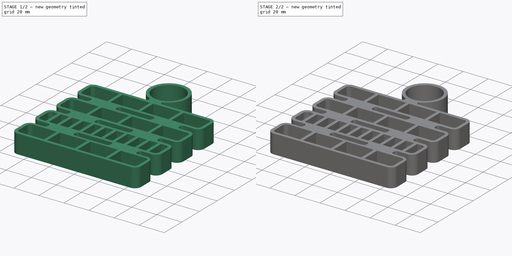
[diagram: build sequence overview — one tinted view per stage of 2, left to right]
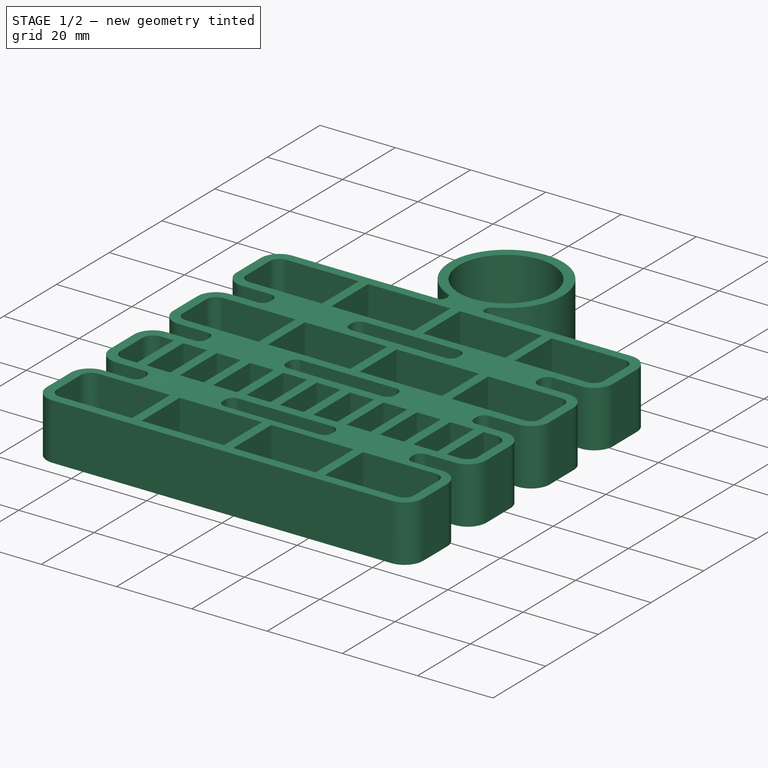
[diagram: stage 1 of 2 — iso view after this stage's code; geometry added in this stage tinted green]
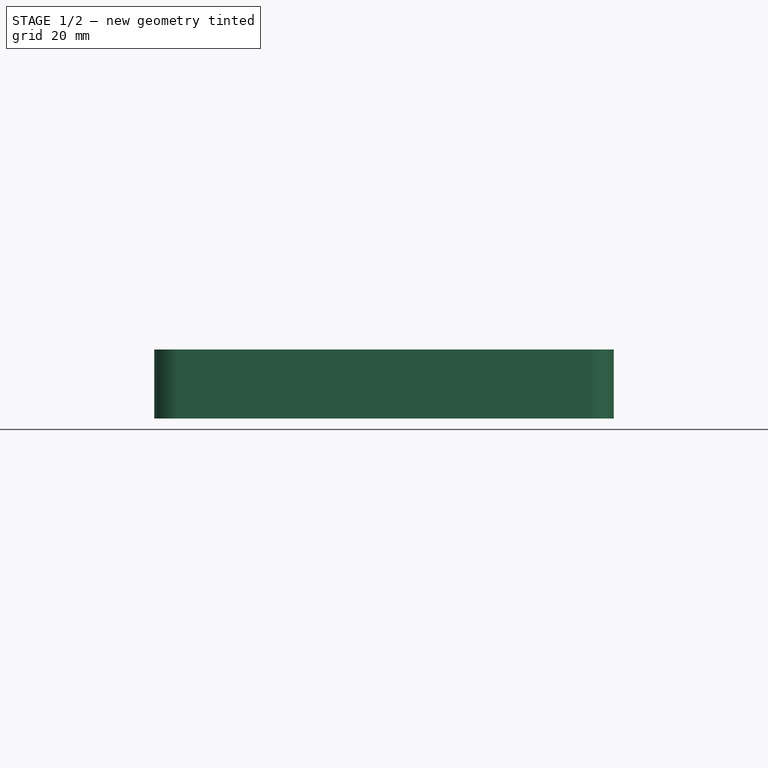
[diagram: stage 1 of 2 — front view after this stage's code; geometry added in this stage tinted green]
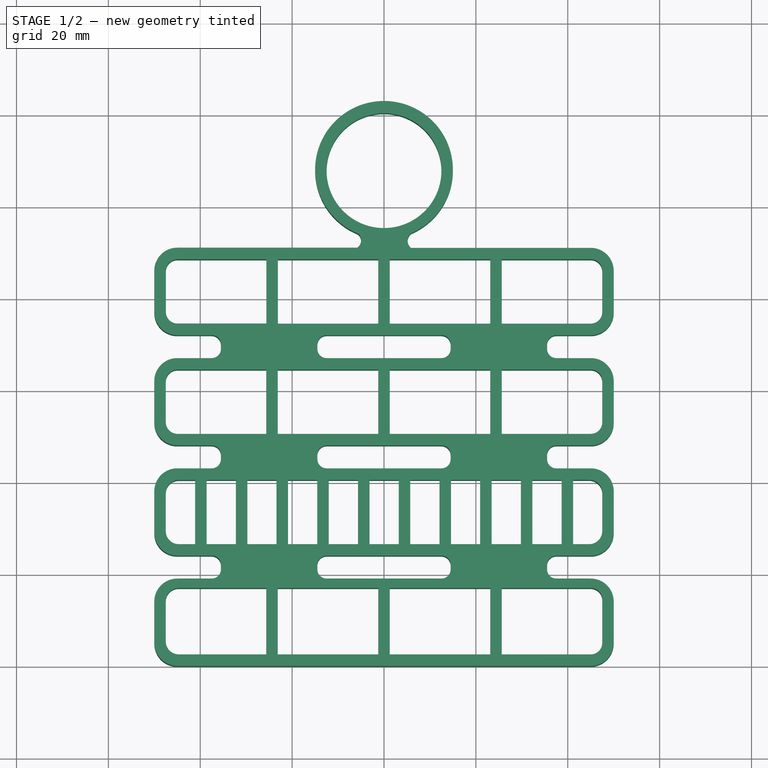
[diagram: stage 1 of 2 — top view after this stage's code; geometry added in this stage tinted green]
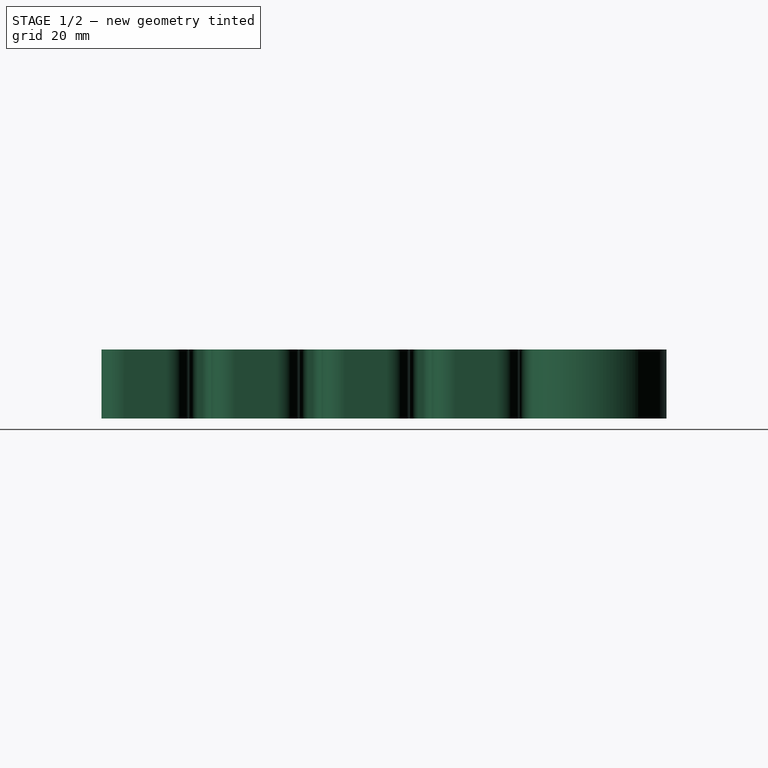
[diagram: stage 1 of 2 — right view after this stage's code; geometry added in this stage tinted green]
FCSTD DOCUMENT  (FreeCAD 1.0R39109 (Git))
Label: TD-FBUH01
License: All rights reserved
LicenseURL: http://en.wikipedia.org/wiki/All_rights_reserved
objects: Sketcher::SketchObject×3, PartDesign::Pocket×2, PartDesign::Pad×1, PartDesign::Body×1
note: 16 computed .brp shape members not serialized (recipe doc carries the construction recipe); baked Part::Feature solids carry a one-line shape summary decoded from their .brp

FEATURE [Sketcher::SketchObject] Sketch
  ArcFitTolerance = 1e-06
  AttachmentSupport = -> [XY_Plane]
  FullyConstrained = false
  MakeInternals = false
  MapMode = 5
  sketch-geometry (119):
    g0: LineSegment StartX=-50 StartY=14 StartZ=0 EndX=-50 EndY=5 EndZ=0
    g1: LineSegment StartX=-45 StartY=0 StartZ=0 EndX=45 EndY=0 EndZ=0
    g2: LineSegment StartX=50 StartY=5 StartZ=0 EndX=50 EndY=14 EndZ=0
    g3: LineSegment StartX=45 StartY=19 StartZ=0 EndX=37.5 EndY=19 EndZ=0
    g4: LineSegment StartX=-50 StartY=38 StartZ=0 EndX=-50 EndY=29 EndZ=0
    g5: LineSegment StartX=-45 StartY=24 StartZ=0 EndX=-37.5 EndY=24 EndZ=0
    g6: LineSegment StartX=50 StartY=29 StartZ=0 EndX=50 EndY=38 EndZ=0
    g7: LineSegment StartX=45 StartY=43 StartZ=0 EndX=37.5 EndY=43 EndZ=0
    g8: LineSegment StartX=-50 StartY=62 StartZ=0 EndX=-50 EndY=53 EndZ=0
    g9: LineSegment StartX=-45 StartY=48 StartZ=0 EndX=-37.5 EndY=48 EndZ=0
    g10: LineSegment StartX=50 StartY=53 StartZ=0 EndX=50 EndY=62 EndZ=0
    g11: LineSegment StartX=45 StartY=67 StartZ=0 EndX=37.5 EndY=67 EndZ=0
    g12: LineSegment StartX=-50 StartY=86.032 StartZ=0 EndX=-50 EndY=77 EndZ=0
    g13: LineSegment StartX=-45 StartY=72 StartZ=0 EndX=-37.5 EndY=72 EndZ=0
    g14: LineSegment StartX=50 StartY=77 StartZ=0 EndX=50 EndY=86 EndZ=0
    g15: LineSegment StartX=45 StartY=91 StartZ=0 EndX=5.86926 EndY=91 EndZ=0
    g16: LineSegment [constr] StartX=50 StartY=19 StartZ=0 EndX=50 EndY=24 EndZ=0
    g17: LineSegment [constr] StartX=50 StartY=43 StartZ=0 EndX=50 EndY=48 EndZ=0
    g18: LineSegment [constr] StartX=50 StartY=67 StartZ=0 EndX=50 EndY=72 EndZ=0
    g19: LineSegment StartX=-35.5 StartY=21 StartZ=0 EndX=-35.5 EndY=22 EndZ=0
    g20: LineSegment StartX=-14.5 StartY=21 StartZ=0 EndX=-14.5 EndY=22 EndZ=0
    g21: LineSegment StartX=14.5 StartY=21 StartZ=0 EndX=14.5 EndY=22 EndZ=0
    g22: LineSegment StartX=35.5 StartY=21 StartZ=0 EndX=35.5 EndY=22 EndZ=0
    g23: LineSegment StartX=-12.5 StartY=24 StartZ=0 EndX=12.5 EndY=24 EndZ=0
    g24: LineSegment StartX=-37.5 StartY=19 StartZ=0 EndX=-45 EndY=19 EndZ=0
    g25: LineSegment StartX=37.5 StartY=24 StartZ=0 EndX=45 EndY=24 EndZ=0
    g26: LineSegment StartX=12.5 StartY=19 StartZ=0 EndX=-12.5 EndY=19 EndZ=0
    g27: LineSegment [constr] StartX=-50 StartY=0 StartZ=0 EndX=-50 EndY=91.032 EndZ=0
    g28: LineSegment StartX=-35.5 StartY=45 StartZ=0 EndX=-35.5 EndY=46 EndZ=0
    g29: LineSegment StartX=-14.5 StartY=45 StartZ=0 EndX=-14.5 EndY=46 EndZ=0
    g30: LineSegment StartX=14.5 StartY=45 StartZ=0 EndX=14.5 EndY=46 EndZ=0
    g31: LineSegment StartX=35.5 StartY=45 StartZ=0 EndX=35.5 EndY=46 EndZ=0
    g32: LineSegment StartX=-35.5 StartY=69 StartZ=0 EndX=-35.5 EndY=70 EndZ=0
    g33: LineSegment StartX=-14.5 StartY=69 StartZ=0 EndX=-14.5 EndY=70 EndZ=0
    g34: LineSegment StartX=14.5 StartY=69 StartZ=0 EndX=14.5 EndY=70 EndZ=0
    g35: LineSegment StartX=35.5 StartY=69 StartZ=0 EndX=35.5 EndY=70 EndZ=0
    g36: LineSegment StartX=-12.5 StartY=72 StartZ=0 EndX=12.5 EndY=72 EndZ=0
    g37: LineSegment StartX=-37.5 StartY=67 StartZ=0 EndX=-45 EndY=67 EndZ=0
    g38: LineSegment StartX=37.5 StartY=72 StartZ=0 EndX=45 EndY=72 EndZ=0
    g39: LineSegment StartX=12.5 StartY=67 StartZ=0 EndX=-12.5 EndY=67 EndZ=0
    g40: LineSegment StartX=37.5 StartY=48 StartZ=0 EndX=45 EndY=48 EndZ=0
    g41: LineSegment StartX=12.5 StartY=43 StartZ=0 EndX=-12.5 EndY=43 EndZ=0
    g42: LineSegment StartX=-37.5 StartY=43 StartZ=0 EndX=-45 EndY=43 EndZ=0
    g43: LineSegment StartX=-12.5 StartY=48 StartZ=0 EndX=12.5 EndY=48 EndZ=0
    g44: ArcOfCircle CenterX=0 CenterY=107.972 CenterZ=0 NormalX=0 NormalY=0 NormalZ=1 AngleXU=0 Radius=15 StartAngle=5.11282 EndAngle=10.6116
    g45: LineSegment StartX=-5.82281 StartY=91.032 StartZ=0 EndX=-45 EndY=91.032 EndZ=0
    g46: ArcOfCircle CenterX=45 CenterY=5 CenterZ=0 NormalX=0 NormalY=0 NormalZ=1 AngleXU=0 Radius=5 StartAngle=4.71239 EndAngle=6.28319
    g47: GeomPoint [constr] X=50 Y=0 Z=0
    g48: ArcOfCircle CenterX=45 CenterY=14 CenterZ=0 NormalX=0 NormalY=0 NormalZ=1 AngleXU=0 Radius=5 StartAngle=0 EndAngle=1.5708
    g49: GeomPoint [constr] X=50 Y=19 Z=0
    g50: ArcOfCircle CenterX=45 CenterY=29 CenterZ=0 NormalX=0 NormalY=0 NormalZ=1 AngleXU=0 Radius=5 StartAngle=4.71239 EndAngle=6.28319
    g51: GeomPoint [constr] X=50 Y=24 Z=0
    g52: ArcOfCircle CenterX=45 CenterY=38 CenterZ=0 NormalX=0 NormalY=0 NormalZ=1 AngleXU=0 Radius=5 StartAngle=6e-16 EndAngle=1.5708
    g53: GeomPoint [constr] X=50 Y=43 Z=0
    g54: ArcOfCircle CenterX=45 CenterY=53 CenterZ=0 NormalX=0 NormalY=0 NormalZ=1 AngleXU=0 Radius=5 StartAngle=4.71239 EndAngle=6.28319
    g55: GeomPoint [constr] X=50 Y=48 Z=0
    g56: ArcOfCircle CenterX=45 CenterY=62 CenterZ=0 NormalX=0 NormalY=0 NormalZ=1 AngleXU=0 Radius=5 StartAngle=5e-16 EndAngle=1.5708
    g57: GeomPoint [constr] X=50 Y=67 Z=0
    g58: ArcOfCircle CenterX=45 CenterY=77 CenterZ=0 NormalX=0 NormalY=0 NormalZ=1 AngleXU=0 Radius=5 StartAngle=4.71239 EndAngle=6.28319
    g59: GeomPoint [constr] X=50 Y=72 Z=0
    g60: ArcOfCircle CenterX=45 CenterY=86 CenterZ=0 NormalX=0 NormalY=0 NormalZ=1 AngleXU=0 Radius=5 StartAngle=0 EndAngle=1.5708
    g61: GeomPoint [constr] X=50 Y=91 Z=0
    g62: LineSegment [constr] StartX=45 StartY=0 StartZ=0 EndX=45 EndY=91 EndZ=0
    g63: ArcOfCircle CenterX=-45 CenterY=5 CenterZ=0 NormalX=0 NormalY=0 NormalZ=1 AngleXU=0 Radius=5 StartAngle=3.14159 EndAngle=4.71239
    g64: GeomPoint [constr] X=-50 Y=0 Z=0
    g65: ArcOfCircle CenterX=-45 CenterY=14 CenterZ=0 NormalX=0 NormalY=0 NormalZ=1 AngleXU=0 Radius=5 StartAngle=1.5708 EndAngle=3.14159
    g66: GeomPoint [constr] X=-50 Y=19 Z=0
    g67: ArcOfCircle CenterX=-45 CenterY=29 CenterZ=0 NormalX=0 NormalY=0 NormalZ=1 AngleXU=0 Radius=5 StartAngle=3.14159 EndAngle=4.71239
    g68: GeomPoint [constr] X=-50 Y=24 Z=0
    g69: ArcOfCircle CenterX=-45 CenterY=38 CenterZ=0 NormalX=0 NormalY=0 NormalZ=1 AngleXU=0 Radius=5 StartAngle=1.5708 EndAngle=3.14159
    g70: GeomPoint [constr] X=-50 Y=43 Z=0
    g71: ArcOfCircle CenterX=-45 CenterY=53 CenterZ=0 NormalX=0 NormalY=0 NormalZ=1 AngleXU=0 Radius=5 StartAngle=3.14159 EndAngle=4.71239
    g72: GeomPoint [constr] X=-50 Y=48 Z=0
    g73: ArcOfCircle CenterX=-45 CenterY=62 CenterZ=0 NormalX=0 NormalY=0 NormalZ=1 AngleXU=0 Radius=5 StartAngle=1.5708 EndAngle=3.14159
    g74: GeomPoint [constr] X=-50 Y=67 Z=0
    g75: LineSegment [constr] StartX=-45 StartY=0 StartZ=0 EndX=-45 EndY=91.032 EndZ=0
    g76: ArcOfCircle CenterX=-45 CenterY=86.032 CenterZ=0 NormalX=0 NormalY=0 NormalZ=1 AngleXU=0 Radius=5 StartAngle=1.5708 EndAngle=3.14159
    g77: GeomPoint [constr] X=-50 Y=91.032 Z=0
    g78: ArcOfCircle CenterX=-45 CenterY=77 CenterZ=0 NormalX=0 NormalY=0 NormalZ=1 AngleXU=0 Radius=5 StartAngle=3.14159 EndAngle=4.71239
    g79: GeomPoint [constr] X=-50 Y=72 Z=0
    g80: LineSegment [constr] StartX=-45 StartY=5 StartZ=0 EndX=-50 EndY=5 EndZ=0
    g81: LineSegment [constr] StartX=45 StartY=5 StartZ=0 EndX=50 EndY=5 EndZ=0
    g82: ArcOfCircle CenterX=-37.5 CenterY=22 CenterZ=0 NormalX=0 NormalY=0 NormalZ=1 AngleXU=0 Radius=2 StartAngle=-9e-16 EndAngle=1.5708
    g83: ArcOfCircle CenterX=-37.5 CenterY=21 CenterZ=0 NormalX=0 NormalY=0 NormalZ=1 AngleXU=0 Radius=2 StartAngle=4.71239 EndAngle=6.28319
    g84: ArcOfCircle CenterX=-12.5 CenterY=22 CenterZ=0 NormalX=0 NormalY=0 NormalZ=1 AngleXU=0 Radius=2 StartAngle=1.5708 EndAngle=3.14159
    g85: ArcOfCircle CenterX=-12.5 CenterY=21 CenterZ=0 NormalX=0 NormalY=0 NormalZ=1 AngleXU=0 Radius=2 StartAngle=3.14159 EndAngle=4.71239
    g86: ArcOfCircle CenterX=12.5 CenterY=22 CenterZ=0 NormalX=0 NormalY=0 NormalZ=1 AngleXU=0 Radius=2 StartAngle=9e-16 EndAngle=1.5708
    g87: ArcOfCircle CenterX=12.5 CenterY=21 CenterZ=0 NormalX=0 NormalY=0 NormalZ=1 AngleXU=0 Radius=2 StartAngle=4.71239 EndAngle=6.28319
    g88: ArcOfCircle CenterX=37.5 CenterY=21 CenterZ=0 NormalX=0 NormalY=0 NormalZ=1 AngleXU=0 Radius=2 StartAngle=3.14159 EndAngle=4.71239
    g89: ArcOfCircle CenterX=37.5 CenterY=22 CenterZ=0 NormalX=0 NormalY=0 NormalZ=1 AngleXU=0 Radius=2 StartAngle=1.5708 EndAngle=3.14159
    g90: LineSegment [constr] StartX=12.5 StartY=19 StartZ=0 EndX=37.5 EndY=19 EndZ=0
    g91: LineSegment [constr] StartX=-37.5 StartY=19 StartZ=0 EndX=-12.5 EndY=19 EndZ=0
    g92: LineSegment [constr] StartX=-37.5 StartY=24 StartZ=0 EndX=-12.5 EndY=24 EndZ=0
    g93: LineSegment [constr] StartX=12.5 StartY=24 StartZ=0 EndX=37.5 EndY=24 EndZ=0
    g94: ArcOfCircle CenterX=-37.5 CenterY=45 CenterZ=0 NormalX=0 NormalY=0 NormalZ=1 AngleXU=0 Radius=2 StartAngle=4.71239 EndAngle=6.28319
    g95: ArcOfCircle CenterX=-37.5 CenterY=46 CenterZ=0 NormalX=0 NormalY=0 NormalZ=1 AngleXU=0 Radius=2 StartAngle=0 EndAngle=1.5708
    g96: ArcOfCircle CenterX=-12.5 CenterY=46 CenterZ=0 NormalX=0 NormalY=0 NormalZ=1 AngleXU=0 Radius=2 StartAngle=1.5708 EndAngle=3.14159
    g97: ArcOfCircle CenterX=-12.5 CenterY=45 CenterZ=0 NormalX=0 NormalY=0 NormalZ=1 AngleXU=0 Radius=2 StartAngle=3.14159 EndAngle=4.71239
    g98: ArcOfCircle CenterX=12.5 CenterY=45 CenterZ=0 NormalX=0 NormalY=0 NormalZ=1 AngleXU=0 Radius=2 StartAngle=4.71239 EndAngle=6.28319
    g99: ArcOfCircle CenterX=12.5 CenterY=46 CenterZ=0 NormalX=0 NormalY=0 NormalZ=1 AngleXU=0 Radius=2 StartAngle=1.3e-15 EndAngle=1.5708
    g100: ArcOfCircle CenterX=37.5 CenterY=46 CenterZ=0 NormalX=0 NormalY=0 NormalZ=1 AngleXU=0 Radius=2 StartAngle=1.5708 EndAngle=3.14159
    g101: ArcOfCircle CenterX=37.5 CenterY=45 CenterZ=0 NormalX=0 NormalY=0 NormalZ=1 AngleXU=0 Radius=2 StartAngle=3.14159 EndAngle=4.71239
    g102: LineSegment [constr] StartX=12.5 StartY=43 StartZ=0 EndX=37.5 EndY=43 EndZ=0
    g103: LineSegment [constr] StartX=12.5 StartY=48 StartZ=0 EndX=37.5 EndY=48 EndZ=0
    g104: LineSegment [constr] StartX=-37.5 StartY=43 StartZ=0 EndX=-12.5 EndY=43 EndZ=0
    g105: ArcOfCircle CenterX=-37.5 CenterY=69 CenterZ=0 NormalX=0 NormalY=0 NormalZ=1 AngleXU=0 Radius=2 StartAngle=4.71239 EndAngle=6.28319
    g106: ArcOfCircle CenterX=-37.5 CenterY=70 CenterZ=0 NormalX=0 NormalY=0 NormalZ=1 AngleXU=0 Radius=2 StartAngle=-1.8e-15 EndAngle=1.5708
    g107: ArcOfCircle CenterX=-12.5 CenterY=70 CenterZ=0 NormalX=0 NormalY=0 NormalZ=1 AngleXU=0 Radius=2 StartAngle=1.5708 EndAngle=3.14159
    g108: ArcOfCircle CenterX=-12.5 CenterY=69 CenterZ=0 NormalX=0 NormalY=0 NormalZ=1 AngleXU=0 Radius=2 StartAngle=3.14159 EndAngle=4.71239
    g109: ArcOfCircle CenterX=12.5 CenterY=69 CenterZ=0 NormalX=0 NormalY=0 NormalZ=1 AngleXU=0 Radius=2 StartAngle=4.71239 EndAngle=6.28319
    g110: ArcOfCircle CenterX=12.5 CenterY=70 CenterZ=0 NormalX=0 NormalY=0 NormalZ=1 AngleXU=0 Radius=2 StartAngle=3.3e-15 EndAngle=1.5708
    g111: ArcOfCircle CenterX=37.5 CenterY=70 CenterZ=0 NormalX=0 NormalY=0 NormalZ=1 AngleXU=0 Radius=2 StartAngle=1.5708 EndAngle=3.14159
    g112: ArcOfCircle CenterX=37.5 CenterY=69 CenterZ=0 NormalX=0 NormalY=0 NormalZ=1 AngleXU=0 Radius=2 StartAngle=3.14159 EndAngle=4.71239
    g113: LineSegment [constr] StartX=-37.5 StartY=67 StartZ=0 EndX=-12.5 EndY=67 EndZ=0
    g114: LineSegment [constr] StartX=-37.5 StartY=72 StartZ=0 EndX=-12.5 EndY=72 EndZ=0
    g115: LineSegment [constr] StartX=12.5 StartY=72 StartZ=0 EndX=37.5 EndY=72 EndZ=0
    g116: LineSegment [constr] StartX=12.5 StartY=67 StartZ=0 EndX=37.5 EndY=67 EndZ=0
    g117: ArcOfCircle CenterX=7.24133 CenterY=92.5892 CenterZ=0 NormalX=0 NormalY=0 NormalZ=1 AngleXU=0 Radius=2.09954 StartAngle=2.29693 EndAngle=4.00017
    g118: ArcOfCircle CenterX=-6.9419 CenterY=92.6304 CenterZ=0 NormalX=0 NormalY=0 NormalZ=1 AngleXU=0 Radius=1.95124 StartAngle=5.3232 EndAngle=7.10896
  constraints (277):
    c: Vertical(g0)
    c: Vertical(g2)
    c: Horizontal(g3)
    c: PointOnObject(g47,g-1)
    c: Symmetric(g47,g64,g-2)
    c: Vertical(g4)
    c: Vertical(g6)
    c: Horizontal(g7)
    c: Vertical(g8)
    c: Vertical(g10)
    c: Horizontal(g11)
    c: Vertical(g12)
    c: Vertical(g14)
    c: Horizontal(g15)
    c: Symmetric(g68,g51,g-2)
    c: Symmetric(g72,g55,g-2)
    c: Symmetric(g79,g59,g-2)
    c: Coincident(g16,g49)
    c: Coincident(g16,g51)
    c: Coincident(g17,g53)
    c: Coincident(g17,g55)
    c: Coincident(g18,g57)
    c: Coincident(g18,g59)
    c: Equal(g16,g17)
    c: Equal(g17,g18)
    c: DistanceY(g16,g16) = 5
    c: DistanceY(g47,g49) = 19
    c: DistanceX(g64,g47) = 100
    c: Vertical(g19)
    c: Vertical(g20)
    c: Vertical(g21)
    c: Vertical(g22)
    c: Horizontal(g23)
    c: Horizontal(g5)
    c: Horizontal(g24)
    c: Coincident(g27,g64)
    c: Coincident(g27,g77)
    c: Vertical(g27)
    c: PointOnObject(g70,g27)
    c: Vertical(g28)
    c: Vertical(g29)
    c: Vertical(g30)
    c: Vertical(g31)
    c: Vertical(g32)
    c: Vertical(g33)
    c: Vertical(g34)
    c: Vertical(g35)
    c: Horizontal(g13)
    c: Horizontal(g36)
    c: Horizontal(g39)
    c: Horizontal(g37)
    c: Horizontal(g9)
    c: Horizontal(g42)
    c: Horizontal(g41)
    c: Horizontal(g43)
    c: Horizontal(g40)
    c: Horizontal(g38)
    c: PointOnObject(g74,g27)
    c: PointOnObject(g44,g-2)
    c: Radius(g44) = 15
    c: Horizontal(g45)
    c: PointOnObject(g47,g1)
    c: PointOnObject(g47,g2)
    c: Tangent(g1,g46) = -1.5708
    c: Tangent(g2,g46) = -1.5708
    c: PointOnObject(g49,g2)
    c: PointOnObject(g49,g3)
    c: Tangent(g2,g48) = -1.5708
    c: Tangent(g3,g48) = -1.5708
    c: PointOnObject(g51,g25)
    c: PointOnObject(g51,g6)
    c: Tangent(g25,g50) = -1.5708
    c: Tangent(g6,g50) = -1.5708
    c: PointOnObject(g53,g6)
    c: PointOnObject(g53,g7)
    c: Tangent(g6,g52) = -1.5708
    c: Tangent(g7,g52) = -1.5708
    c: PointOnObject(g55,g40)
    c: PointOnObject(g55,g10)
    c: Tangent(g40,g54) = -1.5708
    c: Tangent(g10,g54) = -1.5708
    c: PointOnObject(g57,g10)
    c: PointOnObject(g57,g11)
    c: Tangent(g10,g56) = -1.5708
    c: Tangent(g11,g56) = -1.5708
    c: PointOnObject(g59,g38)
    c: PointOnObject(g59,g14)
    c: Tangent(g38,g58) = -1.5708
    c: Tangent(g14,g58) = -1.5708
    c: PointOnObject(g61,g14)
    c: PointOnObject(g61,g15)
    c: Tangent(g14,g60) = -1.5708
    c: Tangent(g15,g60) = -1.5708
    c: PointOnObject(g62,g1)
    c: PointOnObject(g62,g15)
    c: Vertical(g62)
    c: PointOnObject(g60,g62)
    c: PointOnObject(g58,g62)
    c: PointOnObject(g56,g62)
    c: PointOnObject(g54,g62)
    c: PointOnObject(g52,g62)
    c: PointOnObject(g50,g62)
    c: PointOnObject(g48,g62)
    c: PointOnObject(g46,g62)
    c: DistanceX(g62,g2) = 5
    c: Equal(g2,g6)
    c: Equal(g6,g10)
    c: Equal(g10,g14)
    c: PointOnObject(g64,g1)
    c: PointOnObject(g64,g0)
    c: Tangent(g1,g63) = -1.5708
    c: Tangent(g0,g63) = -1.5708
    c: PointOnObject(g66,g0)
    c: PointOnObject(g66,g24)
    c: Tangent(g0,g65) = -1.5708
    c: Tangent(g24,g65) = -1.5708
    c: PointOnObject(g68,g5)
    c: PointOnObject(g68,g4)
    c: Tangent(g5,g67) = -1.5708
    c: Tangent(g4,g67) = -1.5708
    c: PointOnObject(g70,g4)
    c: PointOnObject(g70,g42)
    c: Tangent(g4,g69) = -1.5708
    c: Tangent(g42,g69) = -1.5708
    c: PointOnObject(g72,g9)
    c: PointOnObject(g72,g8)
    c: Tangent(g9,g71) = -1.5708
    c: Tangent(g8,g71) = -1.5708
    c: PointOnObject(g74,g8)
    c: PointOnObject(g74,g37)
    c: Tangent(g8,g73) = -1.5708
    c: Tangent(g37,g73) = -1.5708
    c: PointOnObject(g75,g1)
    c: PointOnObject(g75,g45)
    c: Vertical(g75)
    c: PointOnObject(g77,g12)
    c: PointOnObject(g77,g45)
    c: Tangent(g12,g76) = -1.5708
    c: Tangent(g45,g76) = -1.5708
    c: PointOnObject(g79,g13)
    c: PointOnObject(g79,g12)
    c: Tangent(g13,g78) = -1.5708
    c: Tangent(g12,g78) = -1.5708
    c: PointOnObject(g76,g75)
    c: PointOnObject(g78,g75)
    c: PointOnObject(g71,g75)
    c: PointOnObject(g69,g75)
    c: PointOnObject(g67,g75)
    c: PointOnObject(g65,g75)
    c: PointOnObject(g63,g75)
    c: Coincident(g80,g63)
    c: Coincident(g80,g0)
    c: Coincident(g81,g46)
    c: Equal(g80,g81)
    c: Coincident(g81,g2)
    c: PointOnObject(g73,g75)
    c: Tangent(g5,g82) = 1.5708
    c: Tangent(g19,g82) = -1.5708
    c: Tangent(g24,g83) = 1.5708
    c: Tangent(g19,g83) = -1.5708
    c: Tangent(g23,g84) = 1.5708
    c: Tangent(g20,g84) = 1.5708
    c: Tangent(g26,g85) = 1.5708
    c: Tangent(g20,g85) = 1.5708
    c: Tangent(g23,g86) = 1.5708
    c: Tangent(g21,g86) = -1.5708
    c: Tangent(g26,g87) = 1.5708
    c: Tangent(g21,g87) = -1.5708
    c: Tangent(g3,g88) = 1.5708
    c: Tangent(g22,g88) = 1.5708
    c: Tangent(g22,g89) = 1.5708
    c: Tangent(g25,g89) = 1.5708
    c: Horizontal(g25)
    c: Horizontal(g26)
    c: Coincident(g90,g26)
    c: Coincident(g90,g3)
    c: Coincident(g91,g24)
    c: Coincident(g91,g26)
    c: Horizontal(g91)
    c: Coincident(g92,g5)
    c: Coincident(g92,g23)
    c: Horizontal(g92)
    c: Coincident(g93,g23)
    c: Coincident(g93,g25)
    c: Equal(g93,g92)
    c: Tangent(g42,g94) = 1.5708
    c: Tangent(g28,g94) = -1.5708
    c: Tangent(g9,g95) = 1.5708
    c: Tangent(g28,g95) = -1.5708
    c: Tangent(g29,g96) = 1.5708
    c: Tangent(g43,g96) = 1.5708
    c: Tangent(g41,g97) = 1.5708
    c: Tangent(g29,g97) = 1.5708
    c: Tangent(g41,g98) = 1.5708
    c: Tangent(g30,g98) = -1.5708
    c: Tangent(g30,g99) = -1.5708
    c: Tangent(g43,g99) = 1.5708
    c: Tangent(g31,g100) = 1.5708
    c: Tangent(g40,g100) = 1.5708
    c: Tangent(g7,g101) = 1.5708
    c: Tangent(g31,g101) = 1.5708
    c: Coincident(g102,g41)
    c: Coincident(g102,g7)
    c: Tangent(g102,g98)
    c: Coincident(g103,g43)
    c: Coincident(g103,g40)
    c: Tangent(g37,g105) = 1.5708
    c: Tangent(g32,g105) = -1.5708
    c: Tangent(g32,g106) = -1.5708
    c: Tangent(g13,g106) = 1.5708
    c: Tangent(g33,g107) = 1.5708
    c: Tangent(g36,g107) = 1.5708
    c: Tangent(g39,g108) = 1.5708
    c: Tangent(g33,g108) = 1.5708
    c: Tangent(g39,g109) = 1.5708
    c: Tangent(g34,g109) = -1.5708
    c: Tangent(g34,g110) = -1.5708
    c: Tangent(g36,g110) = 1.5708
    c: Tangent(g35,g111) = 1.5708
    c: Tangent(g38,g111) = 1.5708
    c: Tangent(g11,g112) = 1.5708
    c: Tangent(g35,g112) = 1.5708
    c: Radius(g88) = 2
    c: Equal(g88,g89)
    c: Equal(g89,g87)
    c: Equal(g87,g86)
    c: Equal(g86,g85)
    c: Equal(g85,g84)
    c: Equal(g84,g82)
    c: Equal(g82,g83)
    c: Equal(g83,g94)
    c: Equal(g94,g95)
    c: Equal(g95,g96)
    c: Equal(g96,g97)
    c: Equal(g97,g98)
    c: Equal(g98,g99)
    c: Equal(g99,g100)
    c: Equal(g100,g101)
    c: Equal(g101,g112)
    c: Equal(g112,g111)
    c: Equal(g111,g110)
    c: Equal(g110,g109)
    c: Equal(g109,g108)
    c: Equal(g108,g107)
    c: Equal(g107,g106)
    c: Equal(g106,g105)
    c: Coincident(g113,g37)
    c: Coincident(g113,g39)
    c: Horizontal(g113)
    c: Horizontal(g114)
    c: Coincident(g114,g36)
    c: Coincident(g114,g13)
    c: Coincident(g115,g36)
    c: Coincident(g115,g38)
    c: Coincident(g116,g39)
    c: Coincident(g116,g11)
    c: Horizontal(g116)
    c: Equal(g90,g102)
    c: Equal(g102,g116)
    c: Equal(g91,g104)
    c: Equal(g104,g113)
    c: Equal(g113,g90)
    c: Equal(g23,g41)
    c: Equal(g43,g39)
    c: Equal(g11,g7)
    c: Equal(g7,g3)
    c: Equal(g3,g24)
    c: Equal(g24,g42)
    c: Coincident(g104,g42)
    c: Coincident(g41,g104)
    c: DistanceX(g90,g90) = 25
    c: DistanceX(g26,g26) = 25
    c: Horizontal(g103)
    c: Coincident(g44,g118)
    c: Coincident(g45,g118)
    c: Coincident(g15,g117)
    c: Coincident(g44,g117)
FEATURE [PartDesign::Pad] Pad  label="Body Volume"
  Direction = (0,0,1)
  Length = 15
  Length2 = 10
  Profile = -> Sketch
  ReferenceAxis = -> Sketch [N_Axis]
  Suppressed = false
  Type = 0
FEATURE [Sketcher::SketchObject] Sketch001
  ArcFitTolerance = 1e-06
  AttachmentSupport = -> [XY_Plane]
  FullyConstrained = false
  MakeInternals = false
  MapMode = 5
  sketch-geometry (180):
    g0: LineSegment StartX=-47.5 StartY=14.1313 StartZ=0 EndX=-47.5 EndY=5.32833 EndZ=0
    g1: LineSegment StartX=-44.6717 StartY=2.5 StartZ=0 EndX=-25.625 EndY=2.5 EndZ=0
    g2: LineSegment StartX=-25.625 StartY=2.5 StartZ=0 EndX=-25.625 EndY=16.9597 EndZ=0
    g3: LineSegment StartX=-25.625 StartY=16.9597 StartZ=0 EndX=-44.6717 EndY=16.9597 EndZ=0
    g4: LineSegment StartX=-23.125 StartY=16.9597 StartZ=0 EndX=-23.125 EndY=2.5 EndZ=0
    g5: LineSegment StartX=-23.125 StartY=2.5 StartZ=0 EndX=-1.25 EndY=2.5 EndZ=0
    g6: LineSegment StartX=-1.25 StartY=2.5 StartZ=0 EndX=-1.25 EndY=16.9597 EndZ=0
    g7: LineSegment StartX=-1.25 StartY=16.9597 StartZ=0 EndX=-23.125 EndY=16.9597 EndZ=0
    g8: LineSegment StartX=1.25 StartY=16.9597 StartZ=0 EndX=1.25 EndY=2.5 EndZ=0
    g9: LineSegment StartX=1.25 StartY=2.5 StartZ=0 EndX=23.125 EndY=2.5 EndZ=0
    g10: LineSegment StartX=23.125 StartY=2.5 StartZ=0 EndX=23.125 EndY=16.9597 EndZ=0
    g11: LineSegment StartX=23.125 StartY=16.9597 StartZ=0 EndX=1.25 EndY=16.9597 EndZ=0
    g12: LineSegment StartX=25.625 StartY=16.9597 StartZ=0 EndX=25.625 EndY=2.5 EndZ=0
    g13: LineSegment StartX=25.625 StartY=2.5 StartZ=0 EndX=45 EndY=2.5 EndZ=0
    g14: LineSegment StartX=47.5 StartY=5 StartZ=0 EndX=47.5 EndY=14.4597 EndZ=0
    g15: LineSegment StartX=45 StartY=16.9597 StartZ=0 EndX=25.625 EndY=16.9597 EndZ=0
    g16: LineSegment [constr] StartX=-25.625 StartY=2.5 StartZ=0 EndX=-23.125 EndY=2.5 EndZ=0
    g17: LineSegment [constr] StartX=-1.25 StartY=2.5 StartZ=0 EndX=1.25 EndY=2.5 EndZ=0
    g18: LineSegment [constr] StartX=23.125 StartY=2.5 StartZ=0 EndX=25.625 EndY=2.5 EndZ=0
    g19: LineSegment [constr] StartX=-25.625 StartY=16.9597 StartZ=0 EndX=-23.125 EndY=16.9597 EndZ=0
    g20: LineSegment [constr] StartX=-1.25 StartY=16.9597 StartZ=0 EndX=1.25 EndY=16.9597 EndZ=0
    g21: LineSegment [constr] StartX=23.125 StartY=16.9597 StartZ=0 EndX=25.625 EndY=16.9597 EndZ=0
    g22: LineSegment [constr] StartX=-47.5 StartY=2.5 StartZ=0 EndX=-25.625 EndY=16.9597 EndZ=0
    g23: LineSegment [constr] StartX=-23.125 StartY=2.5 StartZ=0 EndX=-1.25 EndY=16.9597 EndZ=0
    g24: LineSegment [constr] StartX=1.25 StartY=2.5 StartZ=0 EndX=23.125 EndY=16.9597 EndZ=0
    g25: LineSegment [constr] StartX=25.625 StartY=2.5 StartZ=0 EndX=47.5 EndY=16.9597 EndZ=0
    g26: ArcOfCircle CenterX=45 CenterY=5 CenterZ=0 NormalX=0 NormalY=0 NormalZ=1 AngleXU=0 Radius=2.5 StartAngle=4.71239 EndAngle=6.28319
    g27: GeomPoint [constr] X=47.5 Y=2.5 Z=0
    g28: ArcOfCircle CenterX=45 CenterY=14.4597 CenterZ=0 NormalX=0 NormalY=0 NormalZ=1 AngleXU=0 Radius=2.5 StartAngle=0 EndAngle=1.5708
    g29: GeomPoint [constr] X=47.5 Y=16.9597 Z=0
    g30: ArcOfCircle CenterX=-44.6717 CenterY=5.32833 CenterZ=0 NormalX=0 NormalY=0 NormalZ=1 AngleXU=0 Radius=2.82833 StartAngle=3.14159 EndAngle=4.71239
    g31: GeomPoint [constr] X=-47.5 Y=2.5 Z=0
    g32: ArcOfCircle CenterX=-44.6717 CenterY=14.1313 CenterZ=0 NormalX=0 NormalY=0 NormalZ=1 AngleXU=0 Radius=2.82833 StartAngle=1.5708 EndAngle=3.14159
    g33: GeomPoint [constr] X=-47.5 Y=16.9597 Z=0
    g34: LineSegment [constr] StartX=-47.5 StartY=0 StartZ=0 EndX=47.5 EndY=0 EndZ=0
    g35: LineSegment [constr] StartX=-47.5 StartY=0 StartZ=0 EndX=-47.5 EndY=2.5 EndZ=0
    g36: LineSegment [constr] StartX=47.5 StartY=5 StartZ=0 EndX=47.5 EndY=0 EndZ=0
    g37: LineSegment StartX=-47.5 StartY=61.944 StartZ=0 EndX=-47.5 EndY=53.0717 EndZ=0
    g38: LineSegment StartX=-44.9343 StartY=50.506 StartZ=0 EndX=-25.625 EndY=50.506 EndZ=0
    g39: LineSegment StartX=-25.625 StartY=50.506 StartZ=0 EndX=-25.625 EndY=64.5097 EndZ=0
    g40: LineSegment StartX=-25.625 StartY=64.5097 StartZ=0 EndX=-44.9343 EndY=64.5097 EndZ=0
    g41: LineSegment StartX=-23.125 StartY=64.5097 StartZ=0 EndX=-23.125 EndY=50.506 EndZ=0
    g42: LineSegment StartX=-23.125 StartY=50.506 StartZ=0 EndX=-1.25 EndY=50.506 EndZ=0
    g43: LineSegment StartX=-1.25 StartY=50.506 StartZ=0 EndX=-1.25 EndY=64.5097 EndZ=0
    g44: LineSegment StartX=-1.25 StartY=64.5097 StartZ=0 EndX=-23.125 EndY=64.5097 EndZ=0
    g45: LineSegment StartX=1.25 StartY=64.5097 StartZ=0 EndX=1.25 EndY=50.506 EndZ=0
    g46: LineSegment StartX=1.25 StartY=50.506 StartZ=0 EndX=23.125 EndY=50.506 EndZ=0
    g47: LineSegment StartX=23.125 StartY=50.506 StartZ=0 EndX=23.125 EndY=64.5097 EndZ=0
    g48: LineSegment StartX=23.125 StartY=64.5097 StartZ=0 EndX=1.25 EndY=64.5097 EndZ=0
    g49: LineSegment StartX=25.625 StartY=64.5097 StartZ=0 EndX=25.625 EndY=50.506 EndZ=0
    g50: LineSegment StartX=25.625 StartY=50.506 StartZ=0 EndX=45 EndY=50.506 EndZ=0
    g51: LineSegment StartX=47.5 StartY=53.006 StartZ=0 EndX=47.5 EndY=62.0097 EndZ=0
    g52: LineSegment StartX=45 StartY=64.5097 StartZ=0 EndX=25.625 EndY=64.5097 EndZ=0
    g53: LineSegment [constr] StartX=-25.625 StartY=50.506 StartZ=0 EndX=-23.125 EndY=50.506 EndZ=0
    g54: LineSegment [constr] StartX=-1.25 StartY=50.506 StartZ=0 EndX=1.25 EndY=50.506 EndZ=0
    g55: LineSegment [constr] StartX=23.125 StartY=50.506 StartZ=0 EndX=25.625 EndY=50.506 EndZ=0
    g56: LineSegment [constr] StartX=-25.625 StartY=64.5097 StartZ=0 EndX=-23.125 EndY=64.5097 EndZ=0
    g57: LineSegment [constr] StartX=-1.25 StartY=64.5097 StartZ=0 EndX=1.25 EndY=64.5097 EndZ=0
    g58: LineSegment [constr] StartX=23.125 StartY=64.5097 StartZ=0 EndX=25.625 EndY=64.5097 EndZ=0
    g59: LineSegment [constr] StartX=-47.5 StartY=50.506 StartZ=0 EndX=-25.625 EndY=64.5097 EndZ=0
    g60: LineSegment [constr] StartX=-23.125 StartY=50.506 StartZ=0 EndX=-1.25 EndY=64.5097 EndZ=0
    g61: LineSegment [constr] StartX=1.25 StartY=50.506 StartZ=0 EndX=23.125 EndY=64.5097 EndZ=0
    g62: LineSegment [constr] StartX=25.625 StartY=50.506 StartZ=0 EndX=47.5 EndY=64.5097 EndZ=0
    g63: ArcOfCircle CenterX=45 CenterY=53.006 CenterZ=0 NormalX=0 NormalY=0 NormalZ=1 AngleXU=0 Radius=2.5 StartAngle=4.71239 EndAngle=6.28319
    g64: GeomPoint [constr] X=47.5 Y=50.506 Z=0
    g65: ArcOfCircle CenterX=45 CenterY=62.0097 CenterZ=0 NormalX=0 NormalY=0 NormalZ=1 AngleXU=0 Radius=2.5 StartAngle=0 EndAngle=1.5708
    g66: GeomPoint [constr] X=47.5 Y=64.5097 Z=0
    g67: ArcOfCircle CenterX=-44.9343 CenterY=53.0717 CenterZ=0 NormalX=0 NormalY=0 NormalZ=1 AngleXU=0 Radius=2.56566 StartAngle=3.14159 EndAngle=4.71239
    g68: GeomPoint [constr] X=-47.5 Y=50.506 Z=0
    g69: ArcOfCircle CenterX=-44.9343 CenterY=61.944 CenterZ=0 NormalX=0 NormalY=0 NormalZ=1 AngleXU=0 Radius=2.56566 StartAngle=1.5708 EndAngle=3.14159
    g70: GeomPoint [constr] X=-47.5 Y=64.5097 Z=0
    g71: LineSegment StartX=-47.4834 StartY=85.9521 StartZ=0 EndX=-47.4834 EndY=77.0711 EndZ=0
    g72: LineSegment StartX=-44.9258 StartY=74.5136 StartZ=0 EndX=-25.6091 EndY=74.5136 EndZ=0
    g73: LineSegment StartX=-25.6091 StartY=74.5136 StartZ=0 EndX=-25.6091 EndY=88.5097 EndZ=0
    g74: LineSegment StartX=-25.6091 StartY=88.5097 StartZ=0 EndX=-44.9258 EndY=88.5097 EndZ=0
    g75: LineSegment StartX=-23.1091 StartY=88.5097 StartZ=0 EndX=-23.1091 EndY=74.5067 EndZ=0
    g76: LineSegment StartX=-23.1091 StartY=74.5067 StartZ=0 EndX=-1.23931 EndY=74.5067 EndZ=0
    g77: LineSegment StartX=-1.23931 StartY=74.5067 StartZ=0 EndX=-1.23931 EndY=88.5097 EndZ=0
    g78: LineSegment StartX=-1.23931 StartY=88.5097 StartZ=0 EndX=-23.1091 EndY=88.5097 EndZ=0
    g79: LineSegment StartX=1.2607 StartY=88.5097 StartZ=0 EndX=1.2607 EndY=74.5067 EndZ=0
    g80: LineSegment StartX=1.2607 StartY=74.5067 StartZ=0 EndX=23.1305 EndY=74.5067 EndZ=0
    g81: LineSegment StartX=23.1305 StartY=74.5067 StartZ=0 EndX=23.1305 EndY=88.5097 EndZ=0
    g82: LineSegment StartX=23.1305 StartY=88.5097 StartZ=0 EndX=1.2607 EndY=88.5097 EndZ=0
    g83: LineSegment StartX=25.6305 StartY=88.5097 StartZ=0 EndX=25.6305 EndY=74.5067 EndZ=0
    g84: LineSegment StartX=25.6305 StartY=74.5067 StartZ=0 EndX=45.0004 EndY=74.5067 EndZ=0
    g85: LineSegment StartX=47.5004 StartY=77.0067 StartZ=0 EndX=47.5004 EndY=86.0097 EndZ=0
    g86: LineSegment StartX=45.0004 StartY=88.5097 StartZ=0 EndX=25.6305 EndY=88.5097 EndZ=0
    g87: LineSegment [constr] StartX=-25.6091 StartY=74.5136 StartZ=0 EndX=-23.1091 EndY=74.5067 EndZ=0
    g88: LineSegment [constr] StartX=-1.23931 StartY=74.5067 StartZ=0 EndX=1.2607 EndY=74.5067 EndZ=0
    g89: LineSegment [constr] StartX=23.1305 StartY=74.5067 StartZ=0 EndX=25.6305 EndY=74.5067 EndZ=0
    g90: LineSegment [constr] StartX=-25.6091 StartY=88.5097 StartZ=0 EndX=-23.1091 EndY=88.5097 EndZ=0
    g91: LineSegment [constr] StartX=-1.23931 StartY=88.5097 StartZ=0 EndX=1.2607 EndY=88.5097 EndZ=0
    g92: LineSegment [constr] StartX=23.1305 StartY=88.5097 StartZ=0 EndX=25.6305 EndY=88.5097 EndZ=0
    g93: LineSegment [constr] StartX=-47.4834 StartY=74.5136 StartZ=0 EndX=-25.6091 EndY=88.5097 EndZ=0
    g94: LineSegment [constr] StartX=-23.1091 StartY=74.5067 StartZ=0 EndX=-1.23931 EndY=88.5097 EndZ=0
    g95: LineSegment [constr] StartX=1.2607 StartY=74.5067 StartZ=0 EndX=23.1305 EndY=88.5097 EndZ=0
    g96: LineSegment [constr] StartX=25.6305 StartY=74.5067 StartZ=0 EndX=47.5004 EndY=88.5097 EndZ=0
    g97: ArcOfCircle CenterX=45.0004 CenterY=77.0067 CenterZ=0 NormalX=0 NormalY=0 NormalZ=1 AngleXU=0 Radius=2.5 StartAngle=4.71239 EndAngle=6.28319
    g98: GeomPoint [constr] X=47.5004 Y=74.5067 Z=0
    g99: ArcOfCircle CenterX=45.0004 CenterY=86.0097 CenterZ=0 NormalX=0 NormalY=0 NormalZ=1 AngleXU=0 Radius=2.5 StartAngle=3.6e-15 EndAngle=1.5708
    g100: GeomPoint [constr] X=47.5004 Y=88.5097 Z=0
    g101: ArcOfCircle CenterX=-44.9258 CenterY=77.0711 CenterZ=0 NormalX=0 NormalY=0 NormalZ=1 AngleXU=0 Radius=2.55754 StartAngle=3.14159 EndAngle=4.71239
    g102: GeomPoint [constr] X=-47.4834 Y=74.5136 Z=0
    g103: ArcOfCircle CenterX=-44.9258 CenterY=85.9521 CenterZ=0 NormalX=0 NormalY=0 NormalZ=1 AngleXU=0 Radius=2.55754 StartAngle=1.5708 EndAngle=3.14159
    g104: GeomPoint [constr] X=-47.4834 Y=88.5097 Z=0
    g105: LineSegment StartX=-44.6717 StartY=40.4778 StartZ=0 EndX=-41.1151 EndY=40.4778 EndZ=0
    g106: LineSegment StartX=-41.1151 StartY=26.5 StartZ=0 EndX=-44.6717 EndY=26.5 EndZ=0
    g107: LineSegment StartX=-47.5 StartY=29.3283 StartZ=0 EndX=-47.5 EndY=37.6494 EndZ=0
    g108: LineSegment StartX=-41.1151 StartY=40.4778 StartZ=0 EndX=-41.1151 EndY=26.5 EndZ=0
    g109: LineSegment [constr] StartX=-47.5 StartY=26.5 StartZ=0 EndX=-41.1151 EndY=40.4778 EndZ=0
    g110: LineSegment StartX=-38.6151 StartY=40.4872 StartZ=0 EndX=-32.2507 EndY=40.4872 EndZ=0
    g111: LineSegment StartX=-32.2507 StartY=26.5 StartZ=0 EndX=-38.6151 EndY=26.5 EndZ=0
    g112: LineSegment StartX=-38.6151 StartY=26.5 StartZ=0 EndX=-38.6151 EndY=40.4872 EndZ=0
    g113: LineSegment StartX=-32.2507 StartY=40.4872 StartZ=0 EndX=-32.2507 EndY=26.5 EndZ=0
    g114: LineSegment [constr] StartX=-38.6151 StartY=26.5 StartZ=0 EndX=-32.2507 EndY=40.4872 EndZ=0
    g115: LineSegment StartX=-29.7507 StartY=40.4872 StartZ=0 EndX=-23.3864 EndY=40.4872 EndZ=0
    g116: LineSegment StartX=-23.3864 StartY=26.5 StartZ=0 EndX=-29.7507 EndY=26.5 EndZ=0
    g117: LineSegment StartX=-29.7507 StartY=26.5 StartZ=0 EndX=-29.7507 EndY=40.4872 EndZ=0
    g118: LineSegment StartX=-23.3864 StartY=40.4872 StartZ=0 EndX=-23.3864 EndY=26.5 EndZ=0
    g119: LineSegment [constr] StartX=-29.7507 StartY=26.5 StartZ=0 EndX=-23.3864 EndY=40.4872 EndZ=0
    g120: LineSegment StartX=-20.8864 StartY=40.4872 StartZ=0 EndX=-14.5221 EndY=40.4872 EndZ=0
    g121: LineSegment StartX=-14.5221 StartY=26.5 StartZ=0 EndX=-20.8864 EndY=26.5 EndZ=0
    g122: LineSegment StartX=-20.8864 StartY=26.5 StartZ=0 EndX=-20.8864 EndY=40.4872 EndZ=0
    g123: LineSegment StartX=-14.5221 StartY=40.4872 StartZ=0 EndX=-14.5221 EndY=26.5 EndZ=0
    g124: LineSegment [constr] StartX=-20.8864 StartY=26.5 StartZ=0 EndX=-14.5221 EndY=40.4872 EndZ=0
    g125: LineSegment StartX=-12.0221 StartY=40.4872 StartZ=0 EndX=-5.65773 EndY=40.4872 EndZ=0
    g126: LineSegment StartX=-5.65773 StartY=26.5 StartZ=0 EndX=-12.0221 EndY=26.5 EndZ=0
    g127: LineSegment StartX=-12.0221 StartY=26.5 StartZ=0 EndX=-12.0221 EndY=40.4872 EndZ=0
    g128: LineSegment StartX=-5.65773 StartY=40.4872 StartZ=0 EndX=-5.65773 EndY=26.5 EndZ=0
    g129: LineSegment [constr] StartX=-12.0221 StartY=26.5 StartZ=0 EndX=-5.65773 EndY=40.4872 EndZ=0
    g130: LineSegment StartX=-3.15773 StartY=40.4872 StartZ=0 EndX=3.20661 EndY=40.4872 EndZ=0
    g131: LineSegment StartX=3.20661 StartY=26.5 StartZ=0 EndX=-3.15773 EndY=26.5 EndZ=0
    g132: LineSegment StartX=-3.15773 StartY=26.5 StartZ=0 EndX=-3.15773 EndY=40.4872 EndZ=0
    g133: LineSegment StartX=3.20661 StartY=40.4872 StartZ=0 EndX=3.20661 EndY=26.5 EndZ=0
    g134: LineSegment [constr] StartX=-3.15773 StartY=26.5 StartZ=0 EndX=3.20661 EndY=40.4872 EndZ=0
    g135: LineSegment StartX=5.70661 StartY=40.4872 StartZ=0 EndX=12.0709 EndY=40.4872 EndZ=0
    g136: LineSegment StartX=12.0709 StartY=26.5 StartZ=0 EndX=5.70661 EndY=26.5 EndZ=0
    g137: LineSegment StartX=5.70661 StartY=26.5 StartZ=0 EndX=5.70661 EndY=40.4872 EndZ=0
    g138: LineSegment StartX=12.0709 StartY=40.4872 StartZ=0 EndX=12.0709 EndY=26.5 EndZ=0
    g139: LineSegment [constr] StartX=5.70661 StartY=26.5 StartZ=0 EndX=12.0709 EndY=40.4872 EndZ=0
    g140: LineSegment StartX=14.5709 StartY=40.4872 StartZ=0 EndX=20.9353 EndY=40.4872 EndZ=0
    g141: LineSegment StartX=20.9353 StartY=26.5 StartZ=0 EndX=14.5709 EndY=26.5 EndZ=0
    g142: LineSegment StartX=14.5709 StartY=26.5 StartZ=0 EndX=14.5709 EndY=40.4872 EndZ=0
    g143: LineSegment StartX=20.9353 StartY=40.4872 StartZ=0 EndX=20.9353 EndY=26.5 EndZ=0
    g144: LineSegment [constr] StartX=14.5709 StartY=26.5 StartZ=0 EndX=20.9353 EndY=40.4872 EndZ=0
    g145: LineSegment StartX=23.4353 StartY=40.4872 StartZ=0 EndX=29.7996 EndY=40.4872 EndZ=0
    g146: LineSegment StartX=29.7996 StartY=26.5 StartZ=0 EndX=23.4353 EndY=26.5 EndZ=0
    g147: LineSegment StartX=23.4353 StartY=26.5 StartZ=0 EndX=23.4353 EndY=40.4872 EndZ=0
    g148: LineSegment StartX=29.7996 StartY=40.4872 StartZ=0 EndX=29.7996 EndY=26.5 EndZ=0
    g149: LineSegment [constr] StartX=23.4353 StartY=26.5 StartZ=0 EndX=29.7996 EndY=40.4872 EndZ=0
    g150: LineSegment StartX=32.2996 StartY=40.4872 StartZ=0 EndX=38.664 EndY=40.4872 EndZ=0
    g151: LineSegment StartX=38.664 StartY=26.5 StartZ=0 EndX=32.2996 EndY=26.5 EndZ=0
    g152: LineSegment StartX=32.2996 StartY=26.5 StartZ=0 EndX=32.2996 EndY=40.4872 EndZ=0
    g153: LineSegment StartX=38.664 StartY=40.4872 StartZ=0 EndX=38.664 EndY=26.5 EndZ=0
    g154: LineSegment [constr] StartX=32.2996 StartY=26.5 StartZ=0 EndX=38.664 EndY=40.4872 EndZ=0
    g155: LineSegment StartX=41.164 StartY=40.5 StartZ=0 EndX=44.6717 EndY=40.5 EndZ=0
    g156: LineSegment StartX=44.6717 StartY=26.5 StartZ=0 EndX=41.164 EndY=26.5 EndZ=0
    g157: LineSegment StartX=41.164 StartY=26.5 StartZ=0 EndX=41.164 EndY=40.5 EndZ=0
    g158: LineSegment StartX=47.5 StartY=37.6717 StartZ=0 EndX=47.5 EndY=29.3283 EndZ=0
    g159: LineSegment [constr] StartX=41.164 StartY=26.5 StartZ=0 EndX=47.5 EndY=40.5 EndZ=0
    g160: LineSegment [constr] StartX=-41.1151 StartY=26.5 StartZ=0 EndX=-38.6151 EndY=26.5 EndZ=0
    g161: LineSegment [constr] StartX=-32.2507 StartY=26.5 StartZ=0 EndX=-29.7507 EndY=26.5 EndZ=0
    g162: LineSegment [constr] StartX=-23.3864 StartY=26.5 StartZ=0 EndX=-20.8864 EndY=26.5 EndZ=0
    g163: LineSegment [constr] StartX=-14.5221 StartY=26.5 StartZ=0 EndX=-12.0221 EndY=26.5 EndZ=0
    g164: LineSegment [constr] StartX=-5.65773 StartY=26.5 StartZ=0 EndX=-3.15773 EndY=26.5 EndZ=0
    g165: LineSegment [constr] StartX=3.20661 StartY=26.5 StartZ=0 EndX=5.70661 EndY=26.5 EndZ=0
    g166: LineSegment [constr] StartX=12.0709 StartY=26.5 StartZ=0 EndX=14.5709 EndY=26.5 EndZ=0
    g167: LineSegment [constr] StartX=20.9353 StartY=26.5 StartZ=0 EndX=23.4353 EndY=26.5 EndZ=0
    g168: LineSegment [constr] StartX=29.7996 StartY=26.5 StartZ=0 EndX=32.2996 EndY=26.5 EndZ=0
    g169: LineSegment [constr] StartX=38.664 StartY=26.5 StartZ=0 EndX=41.164 EndY=26.5 EndZ=0
    g170: LineSegment [constr] StartX=47.5 StartY=14.4597 StartZ=0 EndX=47.5 EndY=26.5 EndZ=0
    g171: ArcOfCircle CenterX=44.6717 CenterY=37.6717 CenterZ=0 NormalX=0 NormalY=0 NormalZ=1 AngleXU=0 Radius=2.82833 StartAngle=3e-16 EndAngle=1.5708
    g172: GeomPoint [constr] X=47.5 Y=40.5 Z=0
    g173: ArcOfCircle CenterX=44.6717 CenterY=29.3283 CenterZ=0 NormalX=0 NormalY=0 NormalZ=1 AngleXU=0 Radius=2.82833 StartAngle=4.71239 EndAngle=6.28319
    g174: GeomPoint [constr] X=47.5 Y=26.5 Z=0
    g175: ArcOfCircle CenterX=-44.6717 CenterY=29.3283 CenterZ=0 NormalX=0 NormalY=0 NormalZ=1 AngleXU=0 Radius=2.82833 StartAngle=3.14159 EndAngle=4.71239
    g176: GeomPoint [constr] X=-47.5 Y=26.5 Z=0
    g177: ArcOfCircle CenterX=-44.6717 CenterY=37.6494 CenterZ=0 NormalX=0 NormalY=0 NormalZ=1 AngleXU=0 Radius=2.82833 StartAngle=1.5708 EndAngle=3.14159
    g178: GeomPoint [constr] X=-47.5 Y=40.4778 Z=0
    g179: Circle CenterX=0 CenterY=107.81 CenterZ=0 NormalX=0 NormalY=0 NormalZ=1 AngleXU=0 Radius=12.5
  constraints (437):
    c: Coincident(g1,g2)
    c: Coincident(g2,g3)
    c: Vertical(g0)
    c: Vertical(g2)
    c: Horizontal(g1)
    c: Horizontal(g3)
    c: Coincident(g4,g5)
    c: Coincident(g5,g6)
    c: Coincident(g6,g7)
    c: Coincident(g7,g4)
    c: Vertical(g4)
    c: Vertical(g6)
    c: Horizontal(g5)
    c: Horizontal(g7)
    c: Coincident(g8,g9)
    c: Coincident(g9,g10)
    c: Coincident(g10,g11)
    c: Coincident(g11,g8)
    c: Vertical(g8)
    c: Vertical(g10)
    c: Horizontal(g9)
    c: Horizontal(g11)
    c: Coincident(g12,g13)
    c: Coincident(g15,g12)
    c: Vertical(g12)
    c: Vertical(g14)
    c: Horizontal(g13)
    c: Horizontal(g15)
    c: Coincident(g16,g1)
    c: Coincident(g16,g4)
    c: Coincident(g17,g5)
    c: Coincident(g17,g8)
    c: Coincident(g18,g9)
    c: Coincident(g18,g12)
    c: Horizontal(g18)
    c: Horizontal(g17)
    c: Coincident(g19,g2)
    c: Coincident(g19,g4)
    c: Coincident(g20,g6)
    c: Coincident(g20,g8)
    c: Coincident(g21,g10)
    c: Coincident(g21,g12)
    c: Horizontal(g21)
    c: Horizontal(g19)
    c: Horizontal(g20)
    c: Equal(g16,g17)
    c: Equal(g17,g18)
    c: DistanceX(g16,g16) = 2.5
    c: Coincident(g22,g31)
    c: Coincident(g22,g2)
    c: Coincident(g23,g4)
    c: Coincident(g23,g6)
    c: Coincident(g24,g8)
    c: Coincident(g24,g10)
    c: Coincident(g25,g12)
    c: Coincident(g25,g29)
    c: Equal(g22,g23)
    c: Equal(g23,g24)
    c: Equal(g24,g25)
    c: Symmetric(g31,g27,g-2)
    c: PointOnObject(g27,g13)
    c: PointOnObject(g27,g14)
    c: Tangent(g13,g26) = -1.5708
    c: Tangent(g14,g26) = -1.5708
    c: PointOnObject(g29,g14)
    c: PointOnObject(g29,g15)
    c: Tangent(g14,g28) = -1.5708
    c: Tangent(g15,g28) = -1.5708
    c: PointOnObject(g31,g1)
    c: PointOnObject(g31,g0)
    c: Tangent(g1,g30) = -1.5708
    c: Tangent(g0,g30) = -1.5708
    c: PointOnObject(g33,g0)
    c: PointOnObject(g33,g3)
    c: Tangent(g0,g32) = -1.5708
    c: Tangent(g3,g32) = -1.5708
    c: Radius(g26) = 2.5
    c: Equal(g26,g28)
    c: Equal(g30,g32)
    c: PointOnObject(g34,g-1)
    c: DistanceX(g34,g34) = 95
    c: Symmetric(g34,g34,g-2)
    c: Coincident(g35,g34)
    c: Coincident(g35,g22)
    c: Vertical(g35)
    c: Coincident(g36,g14)
    c: Coincident(g36,g34)
    c: Coincident(g38,g39)
    c: Coincident(g72,g73)
    c: Coincident(g39,g40)
    c: Coincident(g73,g74)
    c: Vertical(g37)
    c: Vertical(g71)
    c: Vertical(g39)
    c: Vertical(g73)
    c: Horizontal(g38)
    c: Horizontal(g72)
    c: Horizontal(g40)
    c: Horizontal(g74)
    c: Coincident(g41,g42)
    c: Coincident(g75,g76)
    c: Coincident(g42,g43)
    c: Coincident(g76,g77)
    c: Coincident(g43,g44)
    c: Coincident(g77,g78)
    c: Coincident(g44,g41)
    c: Coincident(g78,g75)
    c: Vertical(g41)
    c: Vertical(g75)
    c: Vertical(g43)
    c: Vertical(g77)
    c: Horizontal(g42)
    c: Horizontal(g76)
    c: Horizontal(g44)
    c: Horizontal(g78)
    c: Coincident(g45,g46)
    c: Coincident(g79,g80)
    c: Coincident(g46,g47)
    c: Coincident(g80,g81)
    c: Coincident(g47,g48)
    c: Coincident(g81,g82)
    c: Coincident(g48,g45)
    c: Coincident(g82,g79)
    c: Vertical(g45)
    c: Vertical(g79)
    c: Vertical(g47)
    c: Vertical(g81)
    c: Horizontal(g46)
    c: Horizontal(g80)
    c: Horizontal(g48)
    c: Horizontal(g82)
    c: Coincident(g49,g50)
    c: Coincident(g83,g84)
    c: Coincident(g52,g49)
    c: Coincident(g86,g83)
    c: Vertical(g49)
    c: Vertical(g83)
    c: Vertical(g51)
    c: Vertical(g85)
    c: Horizontal(g50)
    c: Horizontal(g84)
    c: Horizontal(g52)
    c: Horizontal(g86)
    c: Coincident(g53,g38)
    c: Coincident(g87,g72)
    c: Coincident(g53,g41)
    c: Coincident(g87,g75)
    c: Coincident(g54,g42)
    c: Coincident(g88,g76)
    c: Coincident(g54,g45)
    c: Coincident(g88,g79)
    c: Coincident(g55,g46)
    c: Coincident(g89,g80)
    c: Coincident(g55,g49)
    c: Coincident(g89,g83)
    c: Horizontal(g55)
    c: Horizontal(g89)
    c: Horizontal(g54)
    c: Horizontal(g88)
    c: Coincident(g56,g39)
    c: Coincident(g90,g73)
    c: Coincident(g56,g41)
    c: Coincident(g90,g75)
    c: Coincident(g57,g43)
    c: Coincident(g91,g77)
    c: Coincident(g57,g45)
    c: Coincident(g91,g79)
    c: Coincident(g58,g47)
    c: Coincident(g92,g81)
    c: Coincident(g58,g49)
    c: Coincident(g92,g83)
    c: Horizontal(g58)
    c: Horizontal(g92)
    c: Horizontal(g56)
    c: Horizontal(g90)
    c: Horizontal(g57)
    c: Horizontal(g91)
    c: Equal(g53,g54)
    c: Equal(g87,g88)
    c: Equal(g54,g55)
    c: Equal(g88,g89)
    c: DistanceX(g53,g53) = 2.5
    c: DistanceX(g87,g87) = 2.5
    c: Coincident(g59,g68)
    c: Coincident(g93,g102)
    c: Coincident(g59,g39)
    c: Coincident(g93,g73)
    c: Coincident(g60,g41)
    c: Coincident(g94,g75)
    c: Coincident(g60,g43)
    c: Coincident(g94,g77)
    c: Coincident(g61,g45)
    c: Coincident(g95,g79)
    c: Coincident(g61,g47)
    c: Coincident(g95,g81)
    c: Coincident(g62,g49)
    c: Coincident(g96,g83)
    c: Coincident(g62,g66)
    c: Coincident(g96,g100)
    c: Equal(g59,g60)
    c: Equal(g93,g94)
    c: Equal(g60,g61)
    c: Equal(g94,g95)
    c: Equal(g61,g62)
    c: Equal(g95,g96)
    c: PointOnObject(g64,g50)
    c: PointOnObject(g98,g84)
    c: PointOnObject(g64,g51)
    c: PointOnObject(g98,g85)
    c: Tangent(g50,g63) = -1.5708
    c: Tangent(g84,g97) = -1.5708
    c: Tangent(g51,g63) = -1.5708
    c: Tangent(g85,g97) = -1.5708
    c: PointOnObject(g66,g51)
    c: PointOnObject(g100,g85)
    c: PointOnObject(g66,g52)
    c: PointOnObject(g100,g86)
    c: Tangent(g51,g65) = -1.5708
    c: Tangent(g85,g99) = -1.5708
    c: Tangent(g52,g65) = -1.5708
    c: Tangent(g86,g99) = -1.5708
    c: PointOnObject(g68,g38)
    c: PointOnObject(g102,g72)
    c: PointOnObject(g68,g37)
    c: PointOnObject(g102,g71)
    c: Tangent(g38,g67) = -1.5708
    c: Tangent(g72,g101) = -1.5708
    c: Tangent(g37,g67) = -1.5708
    c: Tangent(g71,g101) = -1.5708
    c: PointOnObject(g70,g37)
    c: PointOnObject(g104,g71)
    c: PointOnObject(g70,g40)
    c: PointOnObject(g104,g74)
    c: Tangent(g37,g69) = -1.5708
    c: Tangent(g71,g103) = -1.5708
    c: Tangent(g40,g69) = -1.5708
    c: Tangent(g74,g103) = -1.5708
    c: Radius(g63) = 2.5
    c: Radius(g97) = 2.5
    c: Equal(g63,g65)
    c: Equal(g97,g99)
    c: Equal(g67,g69)
    c: Equal(g101,g103)
    c: Coincident(g108,g106)
    c: Coincident(g105,g108)
    c: Vertical(g108)
    c: Vertical(g107)
    c: Horizontal(g106)
    c: Horizontal(g105)
    c: Coincident(g109,g176)
    c: Coincident(g109,g105)
    c: Coincident(g113,g111)
    c: Coincident(g118,g116)
    c: Coincident(g123,g121)
    c: Coincident(g128,g126)
    c: Coincident(g133,g131)
    c: Coincident(g138,g136)
    c: Coincident(g143,g141)
    c: Coincident(g148,g146)
    c: Coincident(g153,g151)
    c: Coincident(g111,g112)
    c: Coincident(g116,g117)
    c: Coincident(g121,g122)
    c: Coincident(g126,g127)
    c: Coincident(g131,g132)
    c: Coincident(g136,g137)
    c: Coincident(g141,g142)
    c: Coincident(g146,g147)
    c: Coincident(g151,g152)
    c: Coincident(g156,g157)
    c: Coincident(g112,g110)
    c: Coincident(g117,g115)
    c: Coincident(g122,g120)
    c: Coincident(g127,g125)
    c: Coincident(g132,g130)
    c: Coincident(g137,g135)
    c: Coincident(g142,g140)
    c: Coincident(g147,g145)
    c: Coincident(g152,g150)
    c: Coincident(g157,g155)
    c: Coincident(g110,g113)
    c: Coincident(g115,g118)
    c: Coincident(g120,g123)
    c: Coincident(g125,g128)
    c: Coincident(g130,g133)
    c: Coincident(g135,g138)
    c: Coincident(g140,g143)
    c: Coincident(g145,g148)
    c: Coincident(g150,g153)
    c: Vertical(g113)
    c: Vertical(g118)
    c: Vertical(g123)
    c: Vertical(g128)
    c: Vertical(g133)
    c: Vertical(g138)
    c: Vertical(g143)
    c: Vertical(g148)
    c: Vertical(g153)
    c: Vertical(g158)
    c: Vertical(g112)
    c: Vertical(g117)
    c: Vertical(g122)
    c: Vertical(g127)
    c: Vertical(g132)
    c: Vertical(g137)
    c: Vertical(g142)
    c: Vertical(g147)
    c: Vertical(g152)
    c: Vertical(g157)
    c: Horizontal(g111)
    c: Horizontal(g116)
    c: Horizontal(g121)
    c: Horizontal(g126)
    c: Horizontal(g131)
    c: Horizontal(g136)
    c: Horizontal(g141)
    c: Horizontal(g146)
    c: Horizontal(g151)
    c: Horizontal(g156)
    c: Horizontal(g110)
    c: Horizontal(g115)
    c: Horizontal(g120)
    c: Horizontal(g125)
    c: Horizontal(g130)
    c: Horizontal(g135)
    c: Horizontal(g140)
    c: Horizontal(g145)
    c: Horizontal(g150)
    c: Horizontal(g155)
    c: Coincident(g114,g111)
    c: Coincident(g119,g116)
    c: Coincident(g124,g121)
    c: Coincident(g129,g126)
    c: Coincident(g134,g131)
    c: Coincident(g139,g136)
    c: Coincident(g144,g141)
    c: Coincident(g149,g146)
    c: Coincident(g154,g151)
    c: Coincident(g159,g156)
    c: Coincident(g114,g110)
    c: Coincident(g119,g115)
    c: Coincident(g124,g120)
    c: Coincident(g129,g125)
    c: Coincident(g134,g130)
    c: Coincident(g139,g135)
    c: Coincident(g144,g140)
    c: Coincident(g149,g145)
    c: Coincident(g154,g150)
    c: Coincident(g159,g172)
    c: Equal(g109,g114)
    c: Equal(g114,g119)
    c: Equal(g119,g124)
    c: Equal(g124,g129)
    c: Equal(g129,g134)
    c: Equal(g134,g139)
    c: Equal(g139,g144)
    c: Equal(g144,g149)
    c: Equal(g149,g154)
    c: Equal(g154,g159)
    c: Coincident(g160,g106)
    c: Coincident(g160,g111)
    c: Horizontal(g160)
    c: Coincident(g161,g111)
    c: Coincident(g161,g116)
    c: Horizontal(g161)
    c: Coincident(g162,g116)
    c: Coincident(g162,g121)
    c: Horizontal(g162)
    c: Coincident(g163,g121)
    c: Coincident(g163,g126)
    c: Horizontal(g163)
    c: Coincident(g164,g126)
    c: Coincident(g164,g131)
    c: Horizontal(g164)
    c: Coincident(g165,g131)
    c: Coincident(g165,g136)
    c: Horizontal(g165)
    c: Coincident(g166,g136)
    c: Coincident(g166,g141)
    c: Horizontal(g166)
    c: Coincident(g167,g141)
    c: Coincident(g167,g146)
    c: Horizontal(g167)
    c: Coincident(g168,g146)
    c: Coincident(g168,g151)
    c: Horizontal(g168)
    c: Equal(g160,g161)
    c: Equal(g161,g162)
    c: Equal(g162,g163)
    c: Equal(g163,g164)
    c: Equal(g164,g165)
    c: Equal(g165,g166)
    c: Equal(g166,g167)
    c: Equal(g167,g168)
    c: Equal(g111,g116)
    c: Equal(g116,g121)
    c: Equal(g121,g126)
    c: Equal(g126,g131)
    c: Equal(g131,g136)
    c: Equal(g136,g141)
    c: Equal(g141,g146)
    c: Equal(g146,g151)
    c: Coincident(g169,g151)
    c: Coincident(g169,g156)
    c: Equal(g169,g168)
    c: Equal(g19,g160)
    c: Symmetric(g176,g174,g-2)
    c: Coincident(g170,g14)
    c: Coincident(g170,g174)
    c: Vertical(g170)
    c: DistanceY(g13,g156) = 24
    c: DistanceY(g174,g172) = 14
    c: DistanceY(g34,g13) = 2.5
    c: PointOnObject(g172,g158)
    c: PointOnObject(g172,g155)
    c: Tangent(g158,g171) = 1.5708
    c: Tangent(g155,g171) = 1.5708
    c: PointOnObject(g174,g156)
    c: PointOnObject(g174,g158)
    c: Tangent(g156,g173) = 1.5708
    c: Tangent(g158,g173) = 1.5708
    c: PointOnObject(g176,g106)
    c: PointOnObject(g176,g107)
    c: Tangent(g106,g175) = 1.5708
    c: Tangent(g107,g175) = 1.5708
    c: PointOnObject(g178,g107)
    c: PointOnObject(g178,g105)
    c: Tangent(g107,g177) = 1.5708
    c: Tangent(g105,g177) = 1.5708
    c: Equal(g32,g175)
    c: Equal(g175,g177)
    c: Equal(g177,g171)
    c: Equal(g171,g173)
    c: PointOnObject(g179,g-2)
    c: Radius(g179) = 12.5
    c: DistanceY(g25,g96) = 71.55
    c: DistanceY(g86,g179) = 19.3
FEATURE [PartDesign::Pocket] Pocket  label="Lights Pockets"
  BaseFeature = -> Pad
  Direction = (0,0,-1)
  Length = 5
  Length2 = 5
  Profile = -> Sketch001
  ReferenceAxis = -> Sketch001 [N_Axis]
  Reversed = true
  Suppressed = false
  Type = 1
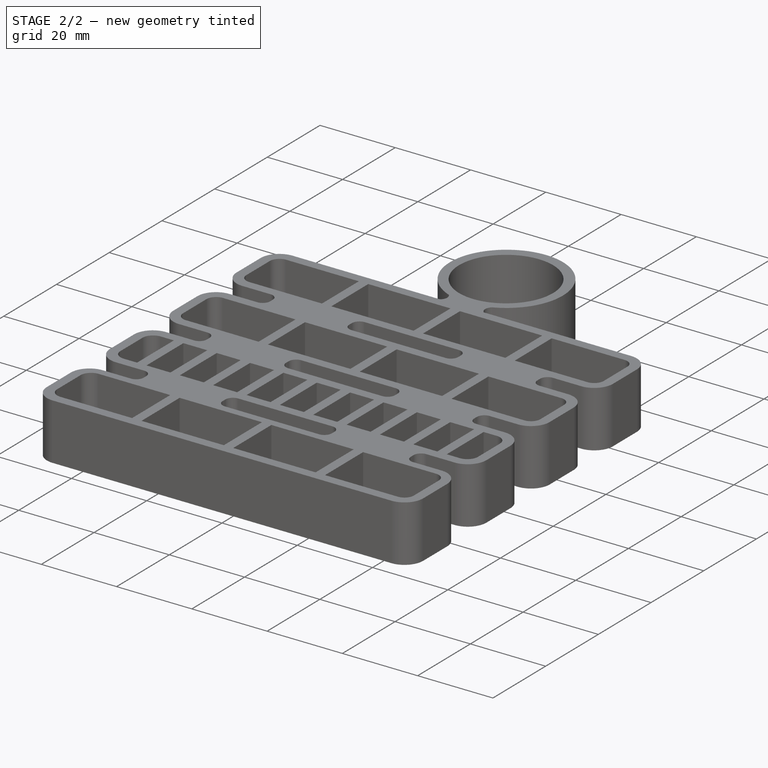
[diagram: stage 2 of 2 — iso view after this stage's code; geometry added in this stage tinted green]
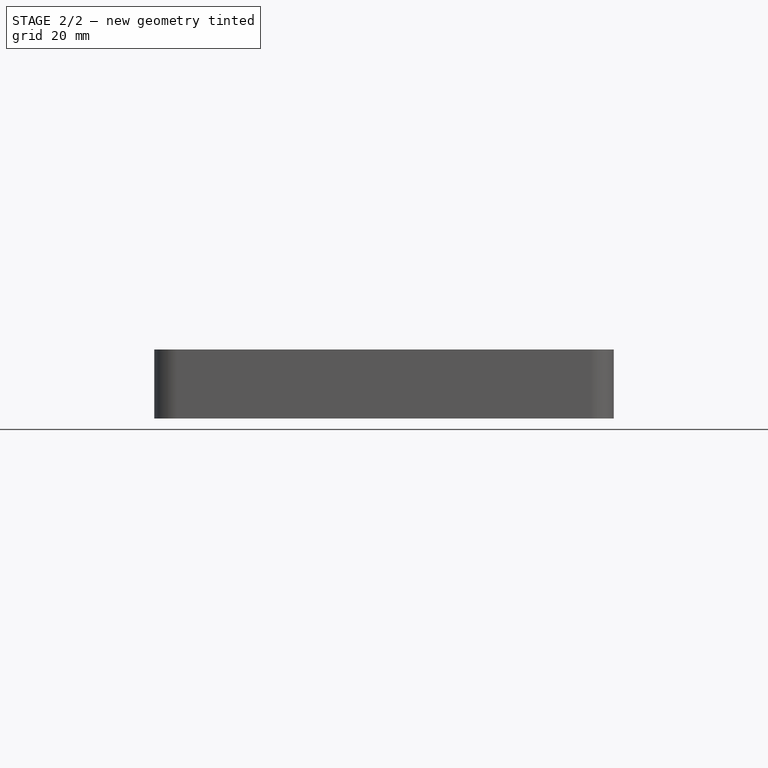
[diagram: stage 2 of 2 — front view after this stage's code; geometry added in this stage tinted green]
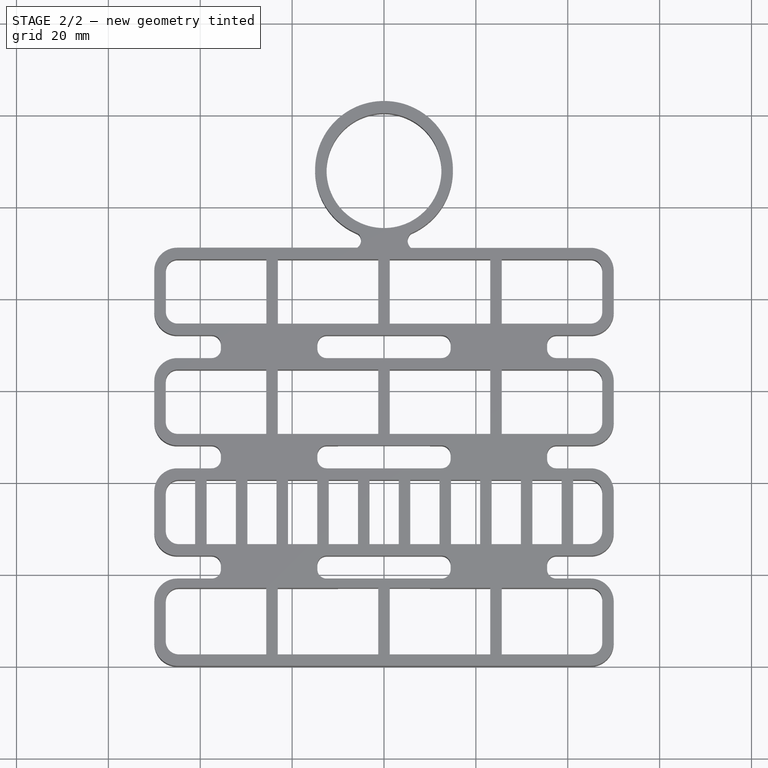
[diagram: stage 2 of 2 — top view after this stage's code; geometry added in this stage tinted green]
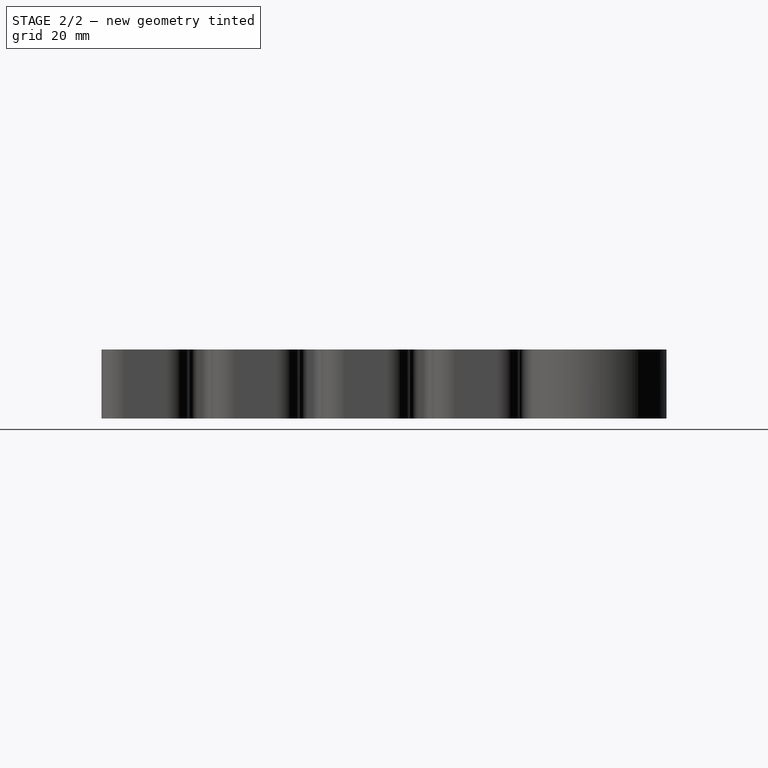
[diagram: stage 2 of 2 — right view after this stage's code; geometry added in this stage tinted green]
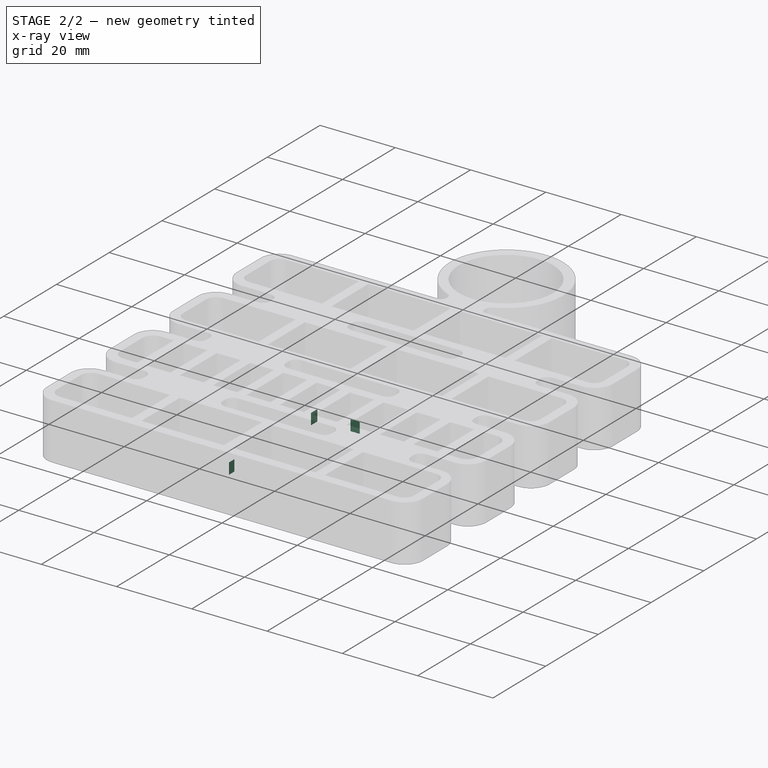
[diagram: stage 2 of 2 — x-ray composite at the iso view; earlier geometry ghosted, this stage's added geometry solid]
FEATURE [Sketcher::SketchObject] Sketch002
  ArcFitTolerance = 1e-06
  AttachmentSupport = -> [XY_Plane]
  ExternalGeometry = -> [Pocket]
  FullyConstrained = true
  MakeInternals = false
  MapMode = 5
  sketch-geometry (8):
    g0: LineSegment StartX=-10 StartY=19 StartZ=0 EndX=-10 EndY=16.9597 EndZ=0
    g1: LineSegment StartX=-10 StartY=16.9597 StartZ=0 EndX=10 EndY=16.9597 EndZ=0
    g2: LineSegment StartX=10 StartY=16.9597 StartZ=0 EndX=10 EndY=19 EndZ=0
    g3: LineSegment StartX=10 StartY=19 StartZ=0 EndX=-10 EndY=19 EndZ=0
    g4: LineSegment StartX=-10 StartY=50.506 StartZ=0 EndX=-10 EndY=48 EndZ=0
    g5: LineSegment StartX=-10 StartY=48 StartZ=0 EndX=10 EndY=48 EndZ=0
    g6: LineSegment StartX=10 StartY=48 StartZ=0 EndX=10 EndY=50.506 EndZ=0
    g7: LineSegment StartX=10 StartY=50.506 StartZ=0 EndX=-10 EndY=50.506 EndZ=0
  constraints (22):
    c: Coincident(g0,g1)
    c: Coincident(g1,g2)
    c: Coincident(g2,g3)
    c: Coincident(g3,g0)
    c: Vertical(g0)
    c: Vertical(g2)
    c: Horizontal(g1)
    c: DistanceX(g3,g3) = 20
    c: Coincident(g4,g5)
    c: Coincident(g5,g6)
    c: Coincident(g6,g7)
    c: Coincident(g7,g4)
    c: Vertical(g4)
    c: Vertical(g6)
    c: Horizontal(g5)
    c: PointOnObject(g0,g-3)
    c: PointOnObject(g0,g-4)
    c: Symmetric(g0,g2,g-2)
    c: PointOnObject(g4,g-6)
    c: PointOnObject(g4,g-5)
    c: Symmetric(g4,g6,g-2)
    c: DistanceX(g7,g7) = 20
FEATURE [PartDesign::Pocket] Pocket001  label="Pin Slots"
  BaseFeature = -> Pocket
  Direction = (0,0,-1)
  Length = 3
  Length2 = 5
  Profile = -> Sketch002
  ReferenceAxis = -> Sketch002 [N_Axis]
  Reversed = true
  Suppressed = false
  Type = 0
FEATURE [PartDesign::Body] Body
  AllowCompound = false
  Group = -> [Sketch,Pad,Sketch001,Pocket,Sketch002,Pocket001]
  Origin = -> Origin
  Tip = -> Pocket001
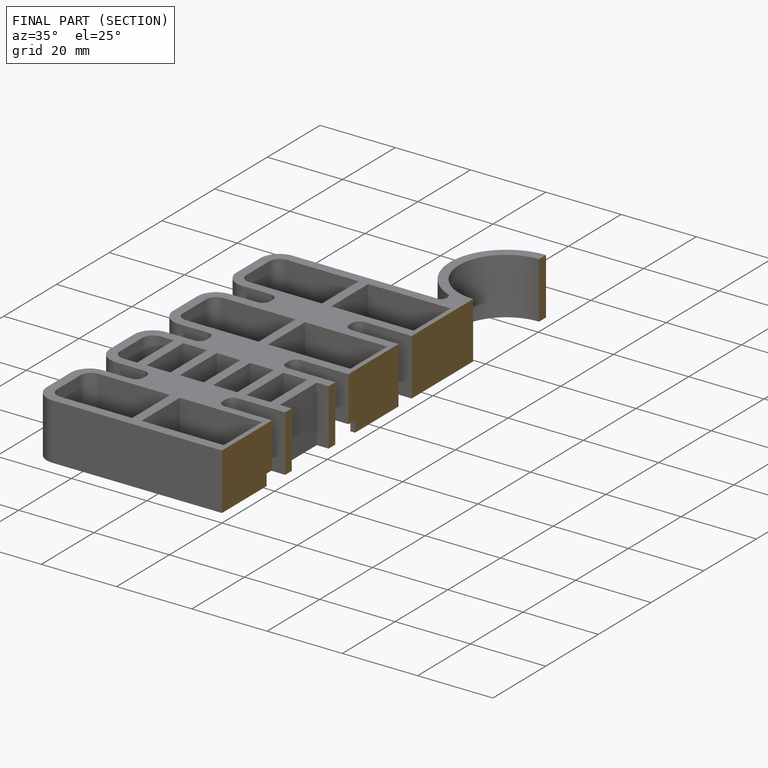
[diagram: finished part — half-section view (interior)]
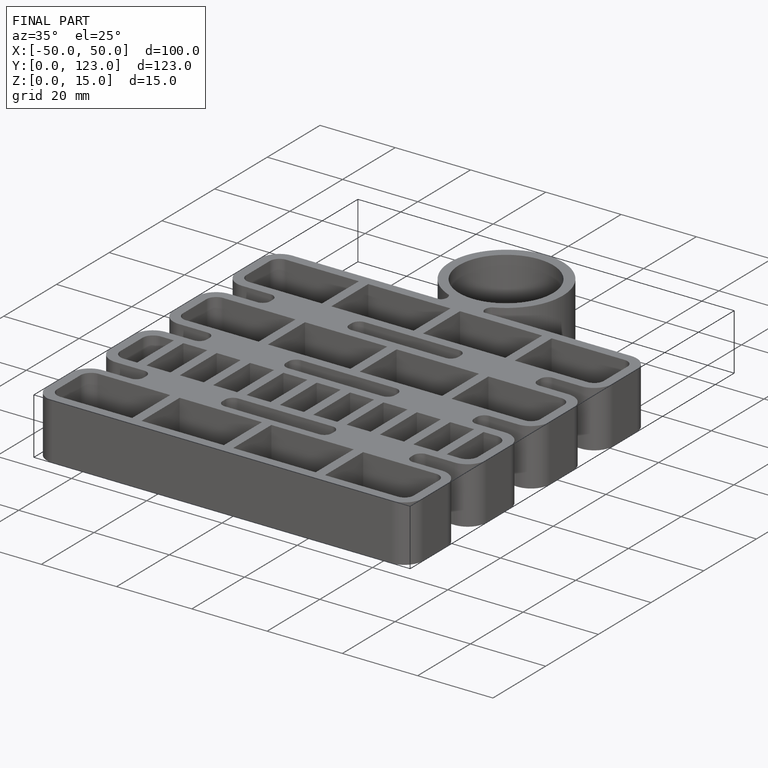
[diagram: finished part — iso view with bounding-box wireframe]
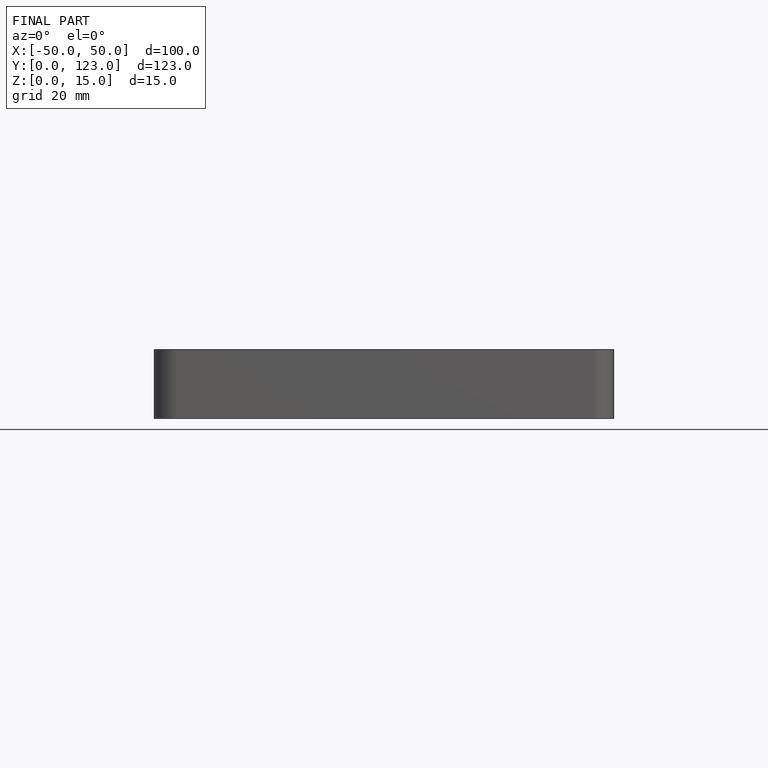
[diagram: finished part — front view with bounding-box wireframe]
